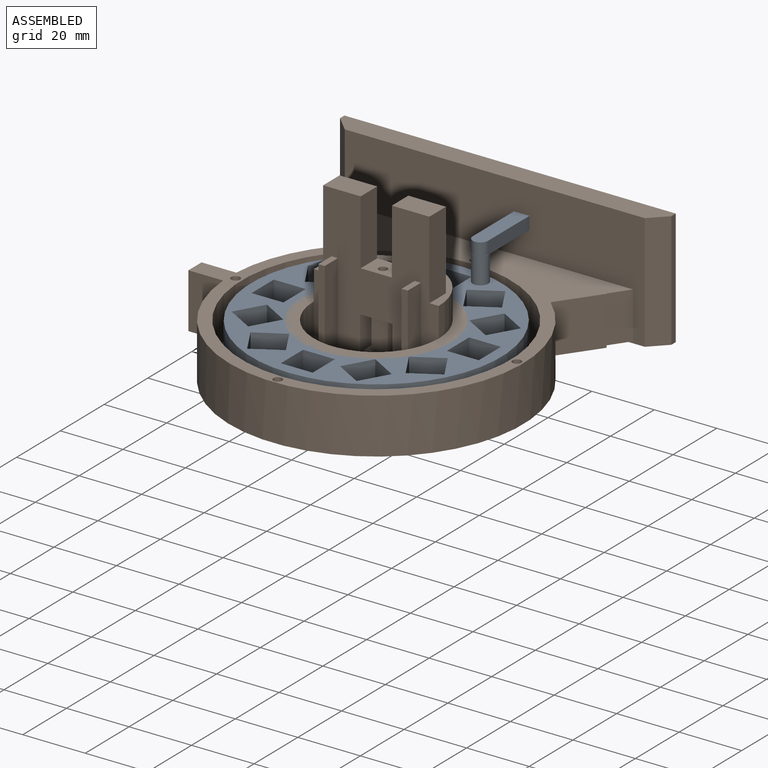
[diagram: assembled view]
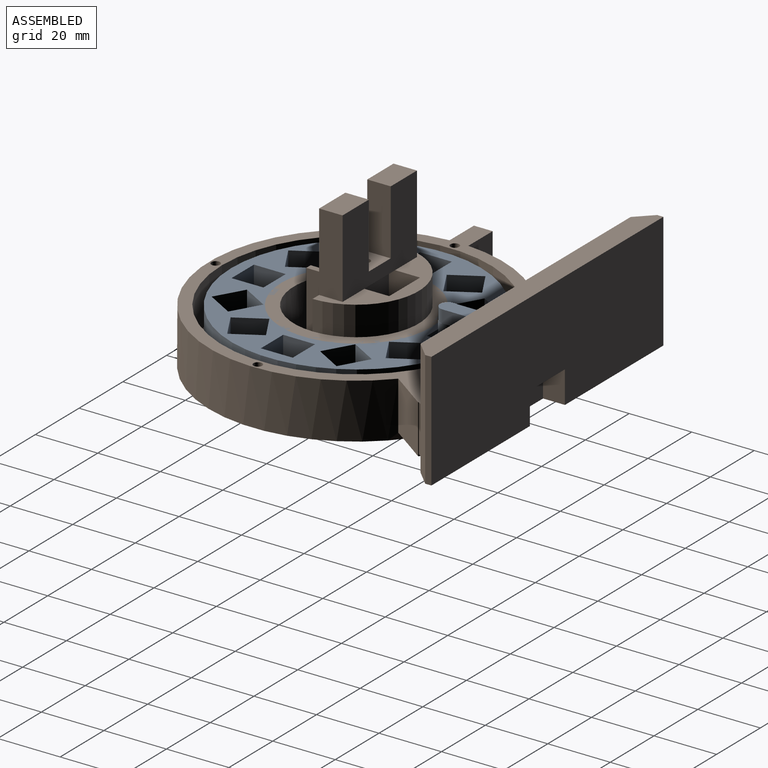
[diagram: assembled view, second angle]
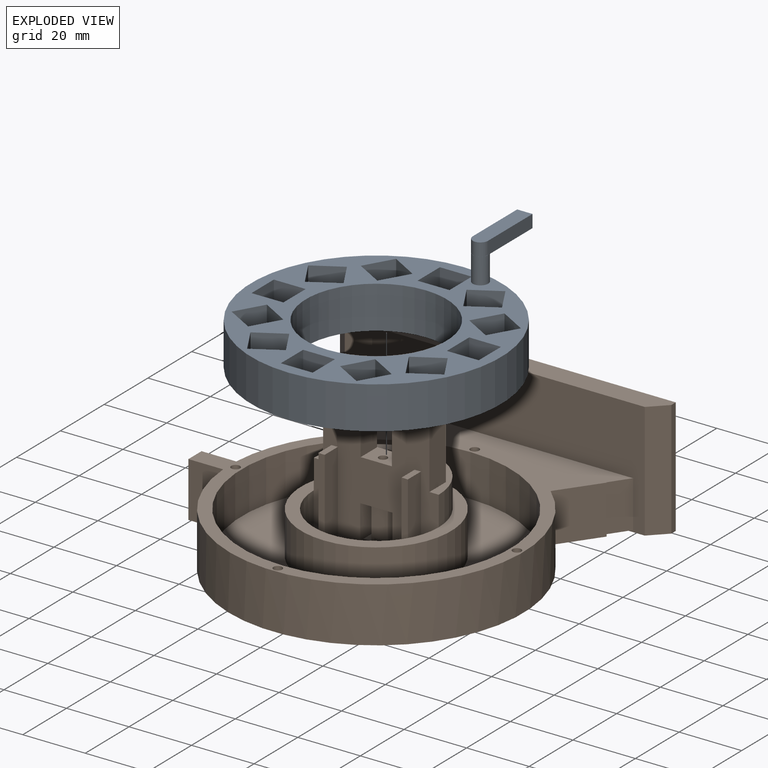
[diagram: exploded view]
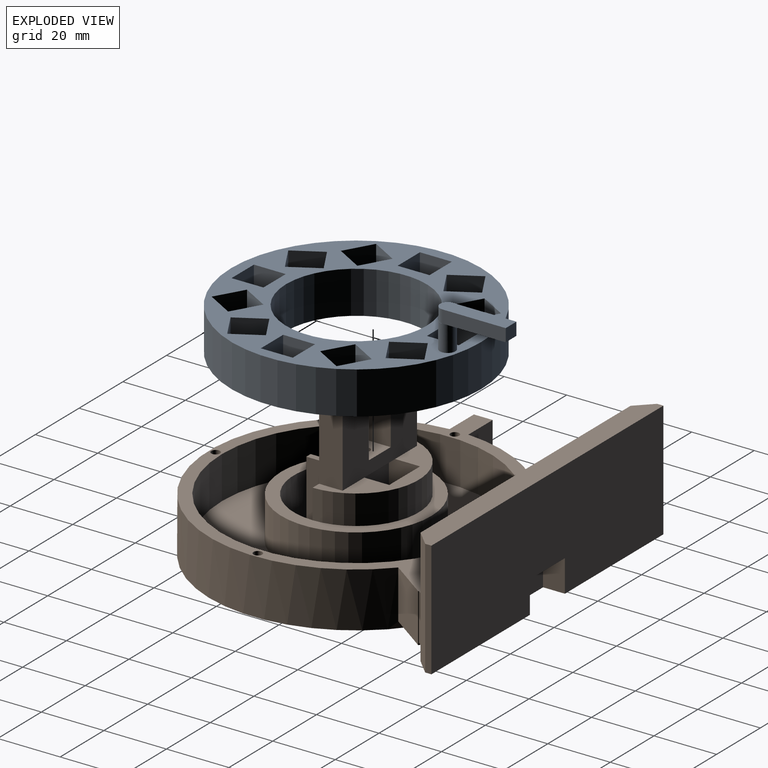
[diagram: exploded view, second angle]
ASSEMBLY  parts=2 mates=2
PART A: 72 faces, bbox 80x26x95.6 mm
  f0: plane 4.95x2.84mm, normal (0,-1,0), area 0.2mm2, adj f65,f67,f68,f70
  f1: plane 10.6x8.83mm, normal (-0.87,0,0.5), area 108.1mm2, adj f2,f38,f51,f64
  f2: plane 10.6x8.83mm, normal (0.5,0,0.87), area 108.1mm2, adj f1,f3,f51,f64
  f3: plane 10.6x8.83mm, normal (0.87,0,-0.5), area 108.1mm2, adj f2,f38,f51,f64
  f4: plane 10.6x8.83mm, normal (-0.87,0,-0.5), area 108.1mm2, adj f5,f39,f51,f63
  f5: plane 10.6x8.83mm, normal (-0.5,0,0.87), area 108.1mm2, adj f4,f6,f51,f63
  f6: plane 10.6x8.83mm, normal (0.87,0,0.5), area 108.1mm2, adj f5,f39,f51,f63
  f7: plane 10.6x10.2mm, normal (0,0,-1), area 108.1mm2, adj f8,f40,f51,f62
  f8: plane 10.6x10.2mm, normal (-1,0,0), area 108.1mm2, adj f7,f9,f51,f62
  f9: plane 10.6x10.2mm, normal (0,0,1), area 108.1mm2, adj f8,f40,f51,f62
  f10: plane 10.6x8.83mm, normal (0.87,0,-0.5), area 108.1mm2, adj f11,f41,f51,f61
  f11: plane 10.6x8.83mm, normal (-0.5,0,-0.87), area 108.1mm2, adj f10,f12,f51,f61
  f12: plane 10.6x8.83mm, normal (-0.87,0,0.5), area 108.1mm2, adj f11,f41,f51,f61
  f13: plane 10.6x8.83mm, normal (0.5,0,-0.87), area 108.1mm2, adj f14,f42,f51,f60
  f14: plane 10.6x8.83mm, normal (-0.87,0,-0.5), area 108.1mm2, adj f13,f15,f51,f60
  f15: plane 10.6x8.83mm, normal (-0.5,0,0.87), area 108.1mm2, adj f14,f42,f51,f60
  f16: plane 10.6x10.2mm, normal (1,0,0), area 108.1mm2, adj f17,f43,f51,f59
  f17: plane 10.6x10.2mm, normal (0,0,-1), area 108.1mm2, adj f16,f18,f51,f59
  f18: plane 10.6x10.2mm, normal (-1,0,0), area 108.1mm2, adj f17,f43,f51,f59
  f19: plane 10.6x8.83mm, normal (0.5,0,0.87), area 108.1mm2, adj f20,f44,f51,f58
  f20: plane 10.6x8.83mm, normal (0.87,0,-0.5), area 108.1mm2, adj f19,f21,f51,f58
  f21: plane 10.6x8.83mm, normal (-0.5,0,-0.87), area 108.1mm2, adj f20,f44,f51,f58
  f22: plane 10.6x8.83mm, normal (0.87,0,0.5), area 108.1mm2, adj f23,f45,f51,f57
  f23: plane 10.6x8.83mm, normal (0.5,0,-0.87), area 108.1mm2, adj f22,f24,f51,f57
  f24: plane 10.6x8.83mm, normal (-0.87,0,-0.5), area 108.1mm2, adj f23,f45,f51,f57
  f25: plane 10.6x10.2mm, normal (0,0,1), area 108.1mm2, adj f26,f46,f51,f56
  f26: plane 10.6x10.2mm, normal (1,0,0), area 108.1mm2, adj f25,f27,f51,f56
  f27: plane 10.6x10.2mm, normal (0,0,-1), area 108.1mm2, adj f26,f46,f51,f56
  f28: plane 10.6x8.83mm, normal (-0.87,0,0.5), area 108.1mm2, adj f29,f47,f51,f55
  f29: plane 10.6x8.83mm, normal (0.5,0,0.87), area 108.1mm2, adj f28,f30,f51,f55
  f30: plane 10.6x8.83mm, normal (0.87,0,-0.5), area 108.1mm2, adj f29,f47,f51,f55
  f31: plane 10.6x8.83mm, normal (-0.5,0,0.87), area 108.1mm2, adj f32,f48,f51,f54
  f32: plane 10.6x8.83mm, normal (0.87,0,0.5), area 108.1mm2, adj f31,f33,f51,f54
  f33: plane 10.6x8.83mm, normal (0.5,0,-0.87), area 108.1mm2, adj f32,f48,f51,f54
  f34: plane 10.6x10.2mm, normal (-1,0,0), area 108.1mm2, adj f35,f49,f51,f53
  f35: plane 10.6x10.2mm, normal (0,0,1), area 108.1mm2, adj f34,f36,f51,f53
  f36: plane 10.6x10.2mm, normal (1,0,0), area 108.1mm2, adj f35,f49,f51,f53
  f37: cylinder r=40mm len=80mm, axis (0,1,0), area 3418.1mm2, adj f51,f52
  f38: plane 10.6x8.83mm, normal (-0.5,0,-0.87), area 108.1mm2, adj f1,f3,f51,f64
  f39: plane 10.6x8.83mm, normal (0.5,0,-0.87), area 108.1mm2, adj f4,f6,f51,f63
  f40: plane 10.6x10.2mm, normal (1,0,0), area 108.1mm2, adj f7,f9,f51,f62
  f41: plane 10.6x8.83mm, normal (0.5,0,0.87), area 108.1mm2, adj f10,f12,f51,f61
  f42: plane 10.6x8.83mm, normal (0.87,0,0.5), area 108.1mm2, adj f13,f15,f51,f60
  f43: plane 10.6x10.2mm, normal (0,0,1), area 108.1mm2, adj f16,f18,f51,f59
  f44: plane 10.6x8.83mm, normal (-0.87,0,0.5), area 108.1mm2, adj f19,f21,f51,f58
  f45: plane 10.6x8.83mm, normal (-0.5,0,0.87), area 108.1mm2, adj f22,f24,f51,f57
  f46: plane 10.6x10.2mm, normal (-1,0,0), area 108.1mm2, adj f25,f27,f51,f56
  f47: plane 10.6x8.83mm, normal (-0.5,0,-0.87), area 108.1mm2, adj f28,f30,f51,f55
  f48: plane 10.6x8.83mm, normal (-0.87,0,-0.5), area 108.1mm2, adj f31,f33,f51,f54
  f49: plane 10.6x10.2mm, normal (0,0,-1), area 108.1mm2, adj f34,f36,f51,f53
  f50: cylinder r=22.5mm len=45mm, axis (0,1,0), area 1922.7mm2, adj f51,f52
  f51: plane 80x80mm, normal (0,-1,0), area 2168.4mm2, adj f1,f2,f3,f4,f5,f6,f7,f8
  f52: plane 80x80mm, normal (0,1,0), area 3436.1mm2, adj f37,f50
  f53: plane 10.2x10.2mm, normal (0,-1,0), area 104mm2, adj f34,f35,f36,f49
  f54: plane 13.93x13.93mm, normal (0,-1,0), area 104mm2, adj f31,f32,f33,f48
  f55: plane 13.93x13.93mm, normal (0,-1,0), area 104mm2, adj f28,f29,f30,f47
  f56: plane 10.2x10.2mm, normal (0,-1,0), area 104mm2, adj f25,f26,f27,f46
  f57: plane 13.93x13.93mm, normal (0,-1,0), area 104mm2, adj f22,f23,f24,f45
  f58: plane 13.93x13.93mm, normal (0,-1,0), area 104mm2, adj f19,f20,f21,f44
  f59: plane 10.2x10.2mm, normal (0,-1,0), area 104mm2, adj f16,f17,f18,f43
  f60: plane 13.93x13.93mm, normal (0,-1,0), area 104mm2, adj f13,f14,f15,f42
  f61: plane 13.93x13.93mm, normal (0,-1,0), area 104mm2, adj f10,f11,f12,f41
  f62: plane 10.2x10.2mm, normal (0,-1,0), area 104mm2, adj f7,f8,f9,f40
  f63: plane 13.93x13.93mm, normal (0,-1,0), area 104mm2, adj f4,f5,f6,f39
  f64: plane 13.93x13.93mm, normal (0,-1,0), area 104mm2, adj f1,f2,f3,f38
  f65: cylinder r=2.48mm len=8.3mm, axis (0,1,0), area 129.2mm2, adj f0,f51,f66
  f66: plane 19.94x4.9mm, normal (0,1,0), area 89.9mm2, adj f65,f68,f69,f70
  f67: cylinder r=2.45mm len=4.9mm, axis (0,1,0), area 31.6mm2, adj f0,f68,f70,f71
  f68: plane 20.3x4.1mm, normal (1,0,0), area 83.2mm2, adj f0,f66,f67,f69,f71
  f69: plane 4.9x4.1mm, normal (0,0,1), area 20.1mm2, adj f66,f68,f70,f71
  f70: plane 20.3x4.1mm, normal (-1,0,0), area 83.2mm2, adj f0,f66,f67,f69,f71
  f71: plane 22.75x4.9mm, normal (0,-1,0), area 108.9mm2, adj f67,f68,f69,f70
PART B: 124 faces, bbox 111x58x108.1 mm
  f0: cylinder r=1.4mm len=15mm, axis (0,-1,0), area 131.9mm2, adj f1,f32
  f1: plane 2.8x2.8mm, normal (0,-1,0), area 6.2mm2, adj f0
  f2: plane 58x40mm, normal (0,0,1), area 1621.6mm2, adj f3,f4,f5,f6,f9,f10,f11,f21
  f3: plane 3.38x1.5mm, normal (0,-1,0), area 5.1mm2, adj f2,f11,f18,f103
  f4: plane 6x2mm, normal (0,1,0), area 12mm2, adj f2,f21,f47,f48
  f5: plane 6x2mm, normal (0,1,0), area 12mm2, adj f2,f44,f45,f46
  f6: plane 40x20mm, normal (0,1,0), area 303.4mm2, adj f2,f7,f19,f25,f26,f42,f43,f61
  f7: plane 19.01x5.3mm, normal (0,0,-1), area 52.7mm2, adj f6,f8,f22,f23,f24,f25,f41,f43
  f8: plane 4.7x1.3mm, normal (0,1,0), area 6.1mm2, adj f7,f22,f43,f62
  f9: plane 40x20mm, normal (0,-1,0), area 260.7mm2, adj f2,f42,f43,f50,f51,f52,f53,f94
  f10: plane 11.65x5.53mm, normal (1,0,0), area 57.8mm2, adj f2,f15,f16,f18,f92,f93,f95
  f11: plane 11.65x5.53mm, normal (-1,0,0), area 57.8mm2, adj f2,f3,f12,f14,f18,f93,f95
  f12: plane 4.03x2.5mm, normal (0,-1,0), area 10.1mm2, adj f11,f13,f18,f95
  f13: plane 10.03x4.03mm, normal (1,0,0), area 40.4mm2, adj f12,f14,f18,f95
  f14: plane 4.03x2.5mm, normal (0,1,0), area 10.1mm2, adj f11,f13,f18,f95
  f15: plane 4.03x2.5mm, normal (0,-1,0), area 10.1mm2, adj f10,f17,f18,f95
  f16: plane 4.03x2.5mm, normal (0,1,0), area 10.1mm2, adj f10,f17,f18,f95
  f17: plane 10.03x4.03mm, normal (-1,0,0), area 40.4mm2, adj f15,f16,f18,f95
  f18: plane 11.65x10.25mm, normal (0,0,1), area 62.3mm2, adj f3,f10,f11,f12,f13,f14,f15,f16
  f19: plane 19.01x5.22mm, normal (0,0,-1), area 51.2mm2, adj f6,f20,f26,f27,f28,f29,f30,f94
  f20: plane 7x4.7mm, normal (1,0,0), area 32.9mm2, adj f19,f27,f28,f61
  f21: plane 30.2x6mm, normal (-1,0,0), area 181.2mm2, adj f2,f4,f48,f60
  f22: plane 5.01x4.7mm, normal (-1,0,0), area 23.5mm2, adj f7,f8,f23,f62
  f23: plane 4.7x4mm, normal (0,1,0), area 18.8mm2, adj f7,f22,f41,f62
  f24: plane 4.7x4mm, normal (0,-1,0), area 18.8mm2, adj f7,f25,f41,f62
  f25: plane 7x4.7mm, normal (-1,0,0), area 32.9mm2, adj f6,f7,f24,f62
  f26: plane 7x4.7mm, normal (1,0,0), area 32.9mm2, adj f6,f19,f27,f61
  f27: plane 4.7x4mm, normal (0,-1,0), area 18.8mm2, adj f19,f20,f26,f61
  f28: plane 4.7x4mm, normal (0,1,0), area 18.8mm2, adj f19,f20,f29,f61
  f29: plane 5.01x4.7mm, normal (1,0,0), area 23.5mm2, adj f19,f28,f30,f61
  f30: plane 4.7x1.22mm, normal (0,1,0), area 5.7mm2, adj f19,f29,f61,f94
  f31: plane 106x37.2mm, normal (0,0,-1), area 3778.4mm2, adj f33,f75,f76,f79,f81,f82,f83
  f32: plane 105x101.14mm, normal (0,-1,0), area 2097.7mm2, adj f0,f34,f35,f38,f39,f68,f71,f72
  f33: plane 106x25.92mm, normal (0,1,0), area 1453.7mm2, adj f31,f38,f39,f71,f72,f73,f74,f75
  f34: plane 15x6.12mm, normal (-0.82,0,0.57), area 111.8mm2, adj f32,f36,f38,f74
  f35: plane 15x6.12mm, normal (0.82,0,0.57), area 111.8mm2, adj f32,f37,f39,f74
  f36: plane 13.03x6.12mm, normal (0,1,0), area 38.2mm2, adj f34,f38,f74
  f37: plane 13.03x6.12mm, normal (0,1,0), area 38.2mm2, adj f35,f39,f74
  f38: cylinder r=62.5mm len=15.6mm, axis (0,1,0), area 9.5mm2, adj f32,f33,f34,f36,f72,f74
  f39: cylinder r=62.5mm len=15.6mm, axis (0,1,0), area 9.6mm2, adj f32,f33,f35,f37,f71,f74
  f40: plane 48x48mm, normal (0,-1,0), area 552.9mm2, adj f51,f67,f69
  f41: plane 7x4.7mm, normal (-1,0,0), area 32.9mm2, adj f7,f23,f24,f62
  f42: plane 25x14.08mm, normal (0,0,1), area 352mm2, adj f6,f9,f43,f94
  f43: plane 25x9.97mm, normal (-1,0,0), area 160mm2, adj f6,f7,f8,f9,f42,f62,f95,f96
  f44: plane 30.2x6mm, normal (-1,0,0), area 181.2mm2, adj f2,f5,f46,f59
  f45: plane 30.2x6mm, normal (1,0,0), area 181.2mm2, adj f2,f5,f46,f59
  f46: plane 30.2x2mm, normal (0,0,1), area 60.4mm2, adj f5,f44,f45,f59
  f47: plane 30.2x6mm, normal (1,0,0), area 181.2mm2, adj f2,f4,f48,f60
  f48: plane 30.2x2mm, normal (0,0,1), area 60.4mm2, adj f4,f21,f47,f60
  f49: plane 12x7.5mm, normal (0,-1,0), area 90mm2, adj f2,f50,f52,f55
  f50: plane 34x25mm, normal (0,0,-1), area 642mm2, adj f9,f49,f52,f53,f54,f55,f56,f57
  f51: cylinder r=20mm len=40mm, axis (0,1,0), area 590.6mm2, adj f2,f9,f40
  f52: plane 25x7.5mm, normal (-1,0,0), area 187.5mm2, adj f2,f9,f49,f50
  f53: plane 25x7.5mm, normal (1,0,0), area 187.5mm2, adj f2,f9,f50,f54
  f54: plane 12x7.5mm, normal (0,-1,0), area 90mm2, adj f2,f50,f53,f56
  f55: plane 20.8x7.5mm, normal (1,0,0), area 156mm2, adj f2,f49,f50,f57
  f56: plane 20.8x7.5mm, normal (-1,0,0), area 156mm2, adj f2,f50,f54,f57
  f57: plane 10x7.5mm, normal (0,-1,0), area 69.3mm2, adj f2,f50,f55,f56,f58
  f58: cylinder r=1.35mm len=6.19mm, axis (0,1,0), area 52.5mm2, adj f57,f84
  f59: plane 6x2mm, normal (0,-1,0), area 12mm2, adj f2,f44,f45,f46
  f60: plane 6x2mm, normal (0,-1,0), area 12mm2, adj f2,f21,f47,f48
  f61: plane 19.01x5.22mm, normal (0,0,1), area 51.2mm2, adj f6,f20,f26,f27,f28,f29,f30,f94
  f62: plane 19.01x5.3mm, normal (0,0,1), area 52.7mm2, adj f6,f8,f22,f23,f24,f25,f41,f43
  f63: cylinder r=1.4mm len=15.1mm, axis (0,1,0), area 86.4mm2, adj f6,f64,f85,f86,f87
  f64: plane 2.8x2.8mm, normal (0,1,0), area 6.2mm2, adj f63
  f65: cylinder r=1.4mm len=15.1mm, axis (0,1,0), area 86.4mm2, adj f6,f66,f88,f89,f90
  f66: plane 2.8x2.8mm, normal (0,1,0), area 6.2mm2, adj f65
  f67: cylinder r=20mm len=40mm, axis (0,-1,0), area 1231.5mm2, adj f2,f6,f40,f91
  f68: cylinder r=43mm len=86mm, axis (0,-1,0), area 3674.4mm2, adj f32,f70
  f69: cylinder r=24mm len=48mm, axis (0,-1,0), area 2050.8mm2, adj f40,f70
  f70: plane 86x86mm, normal (0,-1,0), area 3999.2mm2, adj f68,f69
  f71: plane 15.6x12.55mm, normal (0.81,0,0.59), area 242.5mm2, adj f32,f33,f39,f73
  f72: plane 15.6x12.67mm, normal (-0.81,0,0.58), area 242.8mm2, adj f32,f33,f38,f73
  f73: cylinder r=47mm len=94mm, axis (0,-1,0), area 4033.4mm2, adj f32,f33,f71,f72,f91,f122,f123
  f74: plane 96x37.2mm, normal (0,0,1), area 2206mm2, adj f32,f33,f34,f35,f36,f37,f38,f39
  f75: plane 37.2x2mm, normal (-1,0,0), area 74.4mm2, adj f31,f33,f77,f79
  f76: plane 37.2x2mm, normal (1,0,0), area 74.4mm2, adj f31,f33,f78,f79
  f77: plane 37.2x5mm, normal (-0.71,0,0.71), area 263mm2, adj f33,f74,f75,f79
  f78: plane 37.2x5mm, normal (0.71,0,0.71), area 263mm2, adj f33,f74,f76,f79
  f79: plane 106x7mm, normal (0,-1,0), area 717mm2, adj f31,f74,f75,f76,f77,f78
  f80: plane 16x10.3mm, normal (0,0,-1), area 164.8mm2, adj f33,f81,f82,f83
  f81: plane 10.3x7mm, normal (-1,0,0), area 72.1mm2, adj f31,f33,f80,f83
  f82: plane 10.3x7mm, normal (1,0,0), area 72.1mm2, adj f31,f33,f80,f83
  f83: plane 16x7mm, normal (0,1,0), area 112mm2, adj f31,f80,f81,f82
  f84: plane 2.7x2.7mm, normal (0,-1,0), area 5.7mm2, adj f58
  f85: plane 2.8x2.4mm, normal (0,1,0), area 5.6mm2, adj f63,f87
  f86: plane 2.8x2.4mm, normal (0,-1,0), area 5.6mm2, adj f63,f87
  f87: plane 7x1.96mm, normal (-1,0,0), area 13.7mm2, adj f63,f85,f86
  f88: plane 2.8x2.4mm, normal (0,1,0), area 5.6mm2, adj f65,f90
  f89: plane 2.8x2.4mm, normal (0,-1,0), area 5.6mm2, adj f65,f90
  f90: plane 7x1.96mm, normal (1,0,0), area 13.7mm2, adj f65,f88,f89
  f91: plane 105x94mm, normal (0,1,0), area 5749.3mm2, adj f67,f73,f121,f122,f123
  f92: plane 3.38x1.5mm, normal (0,-1,0), area 5.1mm2, adj f2,f10,f18,f101
  f93: plane 10.25x1.5mm, normal (0,1,0), area 15.4mm2, adj f2,f10,f11,f18
  f94: plane 25x9.97mm, normal (1,0,0), area 160mm2, adj f6,f9,f19,f30,f42,f61,f95,f96
  f95: plane 25x14.08mm, normal (0,0,-1), area 301.8mm2, adj f6,f10,f11,f12,f13,f14,f15,f16
  f96: plane 14.08x1.97mm, normal (0,1,0), area 27.8mm2, adj f43,f50,f94,f95
  f97: plane 8x4.3mm, normal (1,0,0), area 34.4mm2, adj f2,f6,f98,f100
  f98: plane 37.31x8mm, normal (0,0,-1), area 298.5mm2, adj f6,f97,f99,f100
  f99: plane 8x4.3mm, normal (-1,0,0), area 34.4mm2, adj f2,f6,f98,f100
  f100: plane 37.31x4.3mm, normal (0,1,0), area 152.3mm2, adj f2,f97,f98,f99,f101,f103,f104
  f101: plane 14.18x2.3mm, normal (1,0,0), area 29.6mm2, adj f2,f18,f92,f100,f102,f104
  f102: plane 3.5x0.8mm, normal (0,1,0), area 2.8mm2, adj f18,f101,f103,f104
  f103: plane 14.18x2.3mm, normal (-1,0,0), area 29.6mm2, adj f2,f3,f18,f100,f102,f104
  f104: plane 14.18x3.5mm, normal (0,0,1), area 49.6mm2, adj f100,f101,f102,f103
  f105: plane 6x6mm, normal (0,1,0), area 36mm2, adj f2,f106,f108,f109
  f106: plane 6x3mm, normal (-1,0,0), area 18mm2, adj f2,f105,f107,f109
  f107: plane 6x6mm, normal (0,-1,0), area 36mm2, adj f2,f106,f108,f109
  f108: plane 6x3mm, normal (1,0,0), area 18mm2, adj f2,f105,f107,f109
  f109: plane 6x3mm, normal (0,0,1), area 18mm2, adj f105,f106,f107,f108
  f110: plane 6x6mm, normal (0,1,0), area 36mm2, adj f2,f111,f113,f114
  f111: plane 6x3mm, normal (-1,0,0), area 18mm2, adj f2,f110,f112,f114
  f112: plane 6x6mm, normal (0,-1,0), area 36mm2, adj f2,f111,f113,f114
  f113: plane 6x3mm, normal (1,0,0), area 18mm2, adj f2,f110,f112,f114
  f114: plane 6x3mm, normal (0,0,1), area 18mm2, adj f110,f111,f112,f113
  f115: cylinder r=1.4mm len=15mm, axis (0,-1,0), area 131.9mm2, adj f32,f116
  f116: plane 2.8x2.8mm, normal (0,-1,0), area 6.2mm2, adj f115
  f117: cylinder r=1.4mm len=15mm, axis (0,-1,0), area 131.9mm2, adj f32,f118
  f118: plane 2.8x2.8mm, normal (0,-1,0), area 6.2mm2, adj f117
  f119: cylinder r=1.4mm len=15mm, axis (0,-1,0), area 131.9mm2, adj f32,f120
  f120: plane 2.8x2.8mm, normal (0,-1,0), area 6.2mm2, adj f119
  f121: plane 17.6x6mm, normal (1,0,0), area 105.6mm2, adj f32,f91,f122,f123
  f122: plane 17.6x11.1mm, normal (0,0,1), area 195.3mm2, adj f32,f73,f91,f121
  f123: plane 17.6x11.1mm, normal (0,0,-1), area 195.3mm2, adj f32,f73,f91,f121
PLACE A rot(axis=(-1,0,0),90deg) t=(-12.37,162.09,63.4)mm
PLACE B rot(axis=(0,-0.71,0.71),180deg) t=(-12.37,162.09,63.4)mm fixed
MATE planar B.f68 <-> A.f37  axis (0,0,1) through (-12.37,162.09,60.4)mm
MATE revolute B.f69 <-> A.f50  axis (0,0,1) through (-12.37,162.09,60.4)mm
